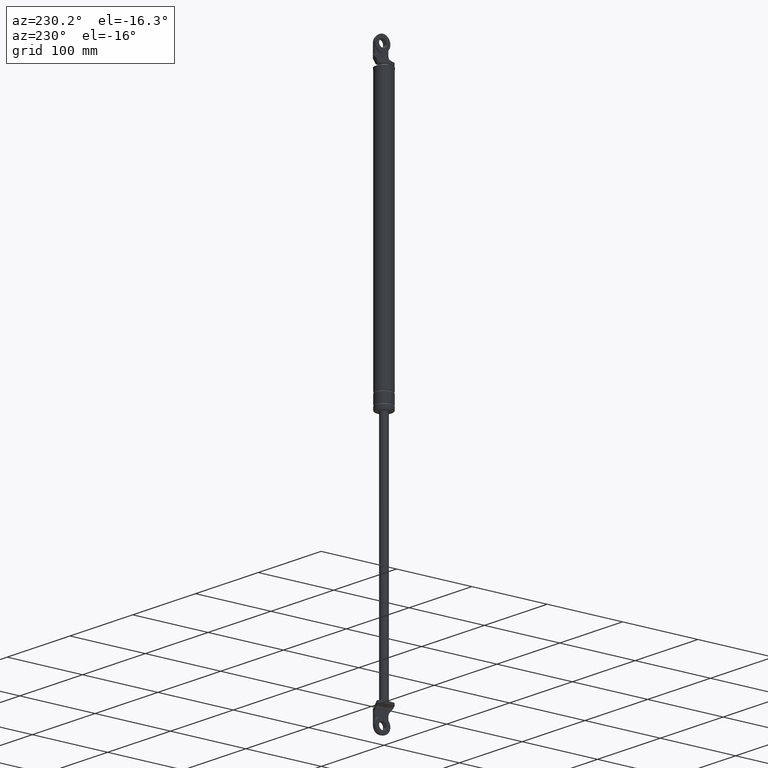
[diagram: clean part render]
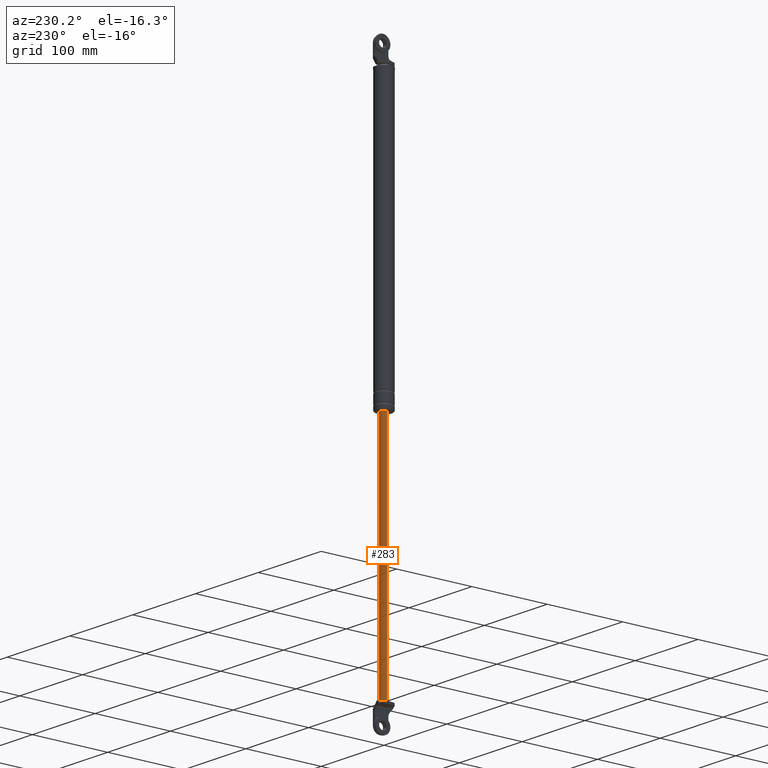
[diagram: same view with one face highlighted and labeled with its STEP entity id]
A machine part, auxiliary view. The second image highlights one B-rep face of the part: STEP entity #283.
In plain terms, the highlighted cylindrical surface (edge-blend (fillet) strip) has radius 5 mm, axis along (0, 0, 1).
Its self-contained STEP definition (entity closure, byte-faithful):
#283=ADVANCED_FACE('',(#1089),#1088,.T.);
#1088=CYLINDRICAL_SURFACE('',#1763,5.00000000000E+000);
#1089=FACE_OUTER_BOUND('',#1764,.T.);
#1760=CARTESIAN_POINT('',(0.00000000000E+000,3.58204186421E-014,0.00000000000E+000));
#1761=DIRECTION('',(-0.00000000000E+000,-0.00000000000E+000,1.00000000000E+000));
#1762=DIRECTION('',(1.00000000000E+000,-0.00000000000E+000,-0.00000000000E+000));
#1763=AXIS2_PLACEMENT_3D('',#1760,#1761,#1762);
#1764=EDGE_LOOP('',(#2162,#2163,#2164,#2165,#2166));
#2162=ORIENTED_EDGE('',*,*,#2375,.T.);
#2163=ORIENTED_EDGE('',*,*,#2376,.F.);
#2164=ORIENTED_EDGE('',*,*,#2342,.F.);
#2165=ORIENTED_EDGE('',*,*,#2373,.F.);
#2166=ORIENTED_EDGE('',*,*,#2377,.T.);
#2342=EDGE_CURVE('',#3457,#3464,#3465,.T.);
#2373=EDGE_CURVE('',#3657,#3457,#3664,.T.);
#2375=EDGE_CURVE('',#3671,#3670,#3678,.T.);
#2376=EDGE_CURVE('',#3464,#3670,#3684,.T.);
#2377=EDGE_CURVE('',#3657,#3671,#3690,.T.);
#3457=VERTEX_POINT('',#4373);
#3464=VERTEX_POINT('',#4377);
#3465=CIRCLE('',#4381,5.00000000000E+000);
#3657=VERTEX_POINT('',#4487);
#3664=CIRCLE('',#4495,5.00000000000E+000);
#3670=VERTEX_POINT('',#4496);
#3671=VERTEX_POINT('',#4497);
#3678=CIRCLE('',#4505,5.00000000000E+000);
#3684=(BOUNDED_CURVE() B_SPLINE_CURVE(1,(#4506,#4507),.UNSPECIFIED.,.F.,.F.) B_SPLINE_CURVE_WITH_KNOTS((2,2),(3.03951368671E-002,9.69604863231E-001),.UNSPECIFIED.) CURVE() GEOMETRIC_REPRESENTATION_ITEM() RATIONAL_B_SPLINE_CURVE((1.00000000000E+000,1.00000000000E+000)) REPRESENTATION_ITEM('') );
#3690=(BOUNDED_CURVE() B_SPLINE_CURVE(1,(#4508,#4509),.UNSPECIFIED.,.F.,.F.) B_SPLINE_CURVE_WITH_KNOTS((2,2),(3.03951367781E-002,9.69604863222E-001),.UNSPECIFIED.) CURVE() GEOMETRIC_REPRESENTATION_ITEM() RATIONAL_B_SPLINE_CURVE((7.50000000000E-001,7.50000000000E-001)) REPRESENTATION_ITEM('') );
#4373=CARTESIAN_POINT('',(2.00000000000E+000,4.58257569496E+000,-5.88000015000E+002));
#4377=CARTESIAN_POINT('',(5.00000000000E+000,-1.00794404564E-011,-5.88000015000E+002));
#4378=CARTESIAN_POINT('',(0.00000000000E+000,3.58204186421E-014,-5.88000015000E+002));
#4379=DIRECTION('',(0.00000000000E+000,0.00000000000E+000,-1.00000000000E+000));
#4380=DIRECTION('',(4.00000000000E-001,9.16515138991E-001,0.00000000000E+000));
#4381=AXIS2_PLACEMENT_3D('',#4378,#4379,#4380);
#4487=CARTESIAN_POINT('',(-5.00000000000E+000,8.97827334497E-007,-5.88000015000E+002));
#4492=CARTESIAN_POINT('',(0.00000000000E+000,3.58204186421E-014,-5.88000015000E+002));
#4493=DIRECTION('',(0.00000000000E+000,0.00000000000E+000,-1.00000000000E+000));
#4494=DIRECTION('',(1.00000000000E+000,-0.00000000000E+000,-0.00000000000E+000));
#4495=AXIS2_PLACEMENT_3D('',#4492,#4493,#4494);
#4496=CARTESIAN_POINT('',(5.00000000000E+000,3.58231962612E-014,-2.79000015000E+002));
#4497=CARTESIAN_POINT('',(-5.00000000000E+000,3.58204186421E-014,-2.79000015000E+002));
#4502=CARTESIAN_POINT('',(0.00000000000E+000,3.58204186421E-014,-2.79000015000E+002));
#4503=DIRECTION('',(-0.00000000000E+000,0.00000000000E+000,-1.00000000000E+000));
#4504=DIRECTION('',(-1.00000000000E+000,-1.22460635382E-016,0.00000000000E+000));
#4505=AXIS2_PLACEMENT_3D('',#4502,#4503,#4504);
#4506=CARTESIAN_POINT('',(5.00000000000E+000,3.58204186421E-014,-5.88000014971E+002));
#4507=CARTESIAN_POINT('',(5.00000000000E+000,3.58204186421E-014,-2.79000014997E+002));
#4508=CARTESIAN_POINT('',(-5.00000000000E+000,3.55271367880E-014,-5.88000015000E+002));
#4509=CARTESIAN_POINT('',(-5.00000000000E+000,3.55271367880E-014,-2.79000015000E+002));